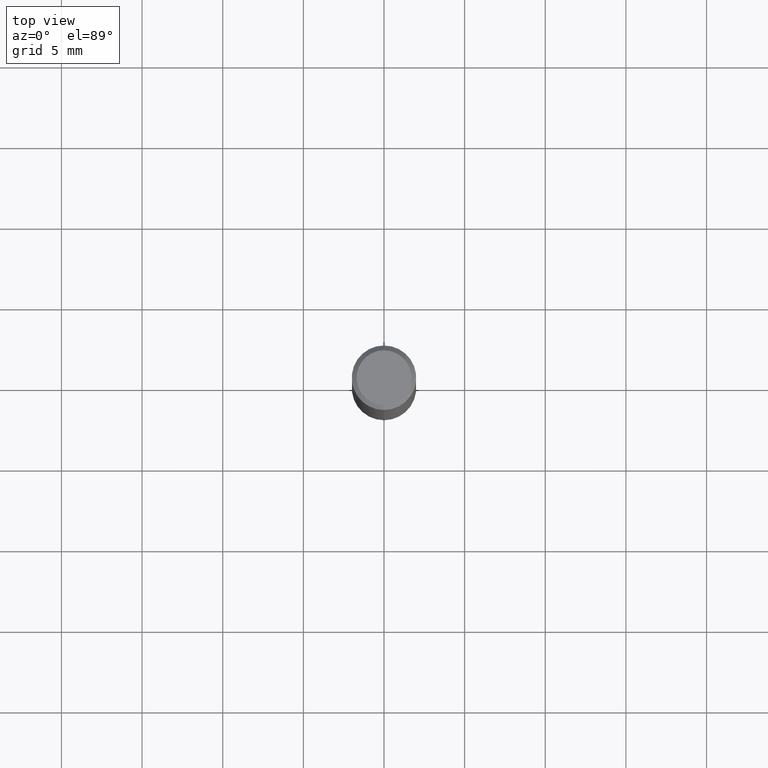
[diagram: clean part render]
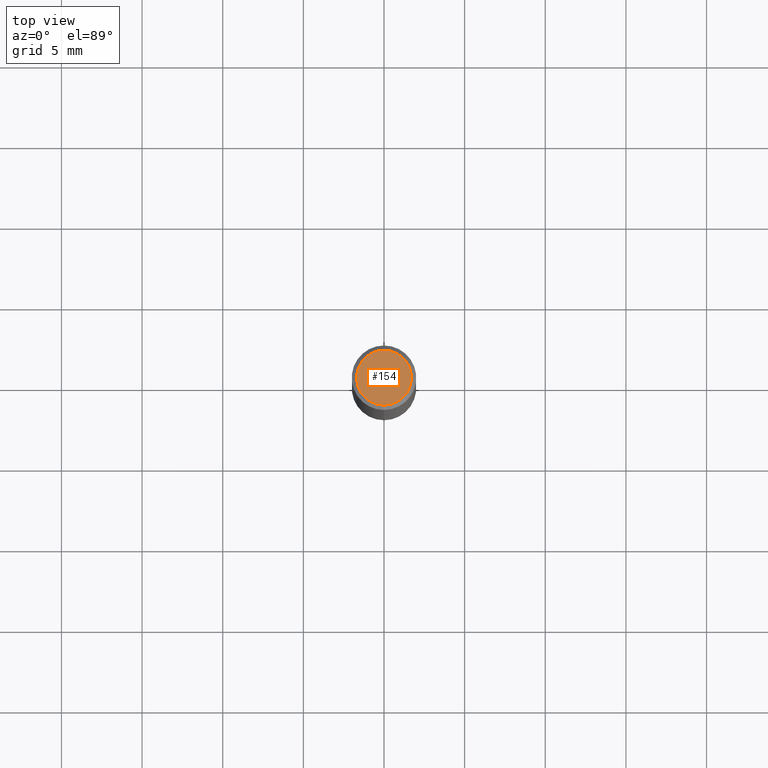
[diagram: same view with one face highlighted and labeled with its STEP entity id]
A machine part, top view. The second image highlights one B-rep face of the part: STEP entity #154.
In plain terms, the highlighted planar face has unit normal (-0, 0, 1).
Its self-contained STEP definition (entity closure, byte-faithful):
#112=EDGE_CURVE('',#144,#152,#254,.T.);
#144=VERTEX_POINT('',#290);
#152=VERTEX_POINT('',#298);
#154=ADVANCED_FACE('',(#300),#301,.T.);
#186=EDGE_CURVE('',#152,#144,#335,.T.);
#254=CIRCLE('',#404,1.7);
#290=CARTESIAN_POINT('',(0.0,1.7,0.0));
#298=CARTESIAN_POINT('',(2.08183080149804E-016,-1.7,0.0));
#300=FACE_OUTER_BOUND('',#466,.T.);
#301=PLANE('',#467);
#335=CIRCLE('',#514,1.7);
#404=AXIS2_PLACEMENT_3D('',#583,#584,#585);
#466=EDGE_LOOP('',(#635,#636));
#467=AXIS2_PLACEMENT_3D('',#637,#638,#639);
#514=AXIS2_PLACEMENT_3D('',#677,#678,#679);
#583=CARTESIAN_POINT('',(0.0,0.0,0.0));
#584=DIRECTION('',(0.0,0.0,-1.0));
#585=DIRECTION('',(0.0,1.0,0.0));
#635=ORIENTED_EDGE('',*,*,#112,.F.);
#636=ORIENTED_EDGE('',*,*,#186,.F.);
#637=CARTESIAN_POINT('',(0.0,0.85,0.0));
#638=DIRECTION('',(-0.0,0.0,1.0));
#639=DIRECTION('',(0.0,-1.0,0.0));
#677=CARTESIAN_POINT('',(0.0,0.0,0.0));
#678=DIRECTION('',(0.0,0.0,-1.0));
#679=DIRECTION('',(0.0,1.0,0.0));